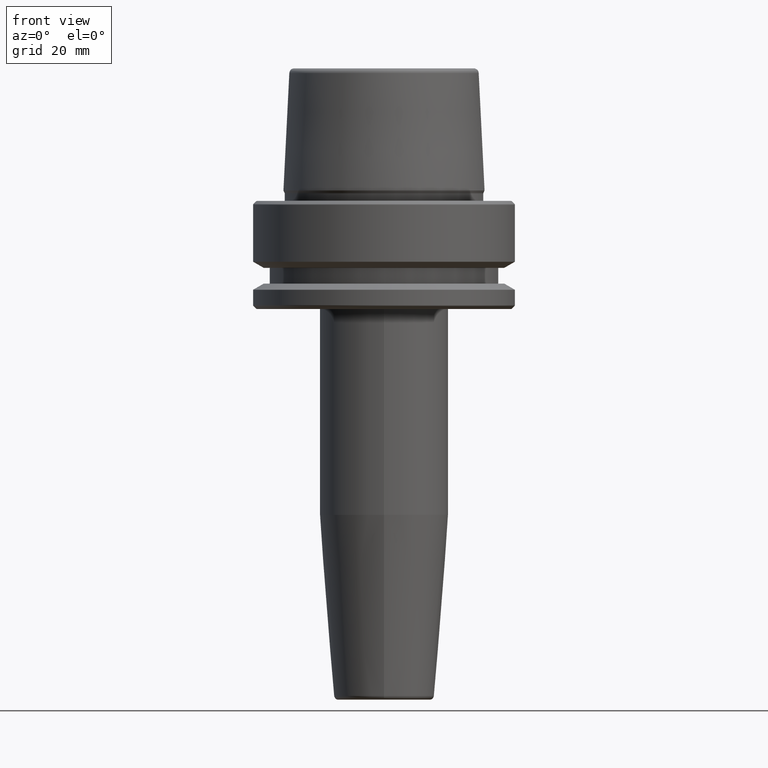
[diagram: clean part render]
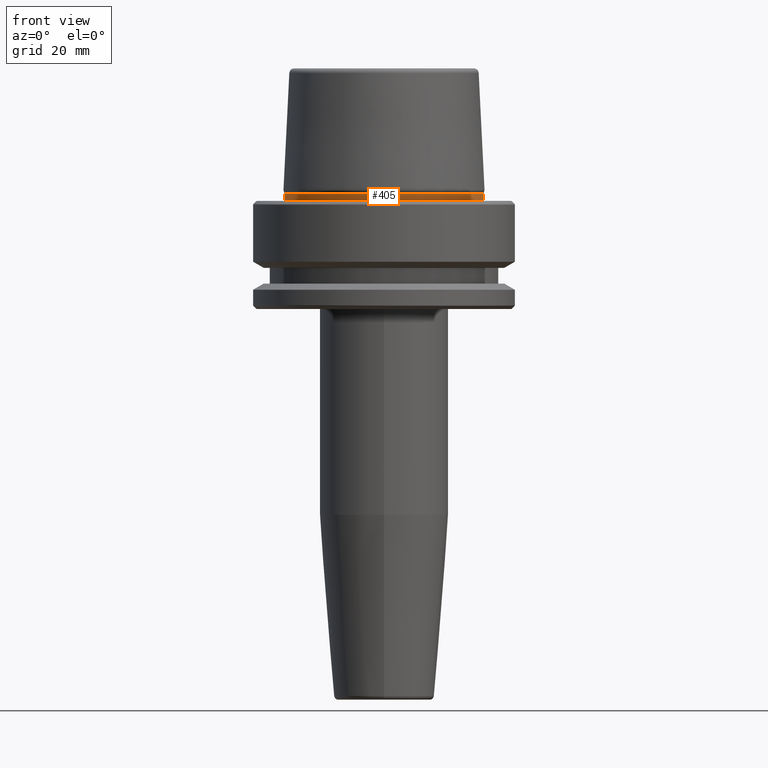
[diagram: same view with one face highlighted and labeled with its STEP entity id]
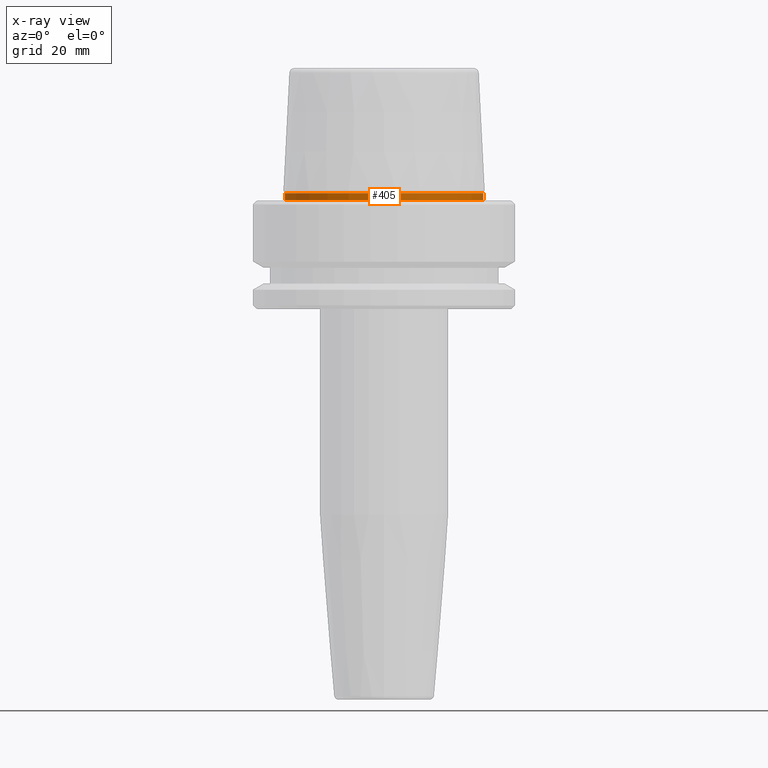
[diagram: x-ray of the same camera — body ghosted, the highlighted face saturated]
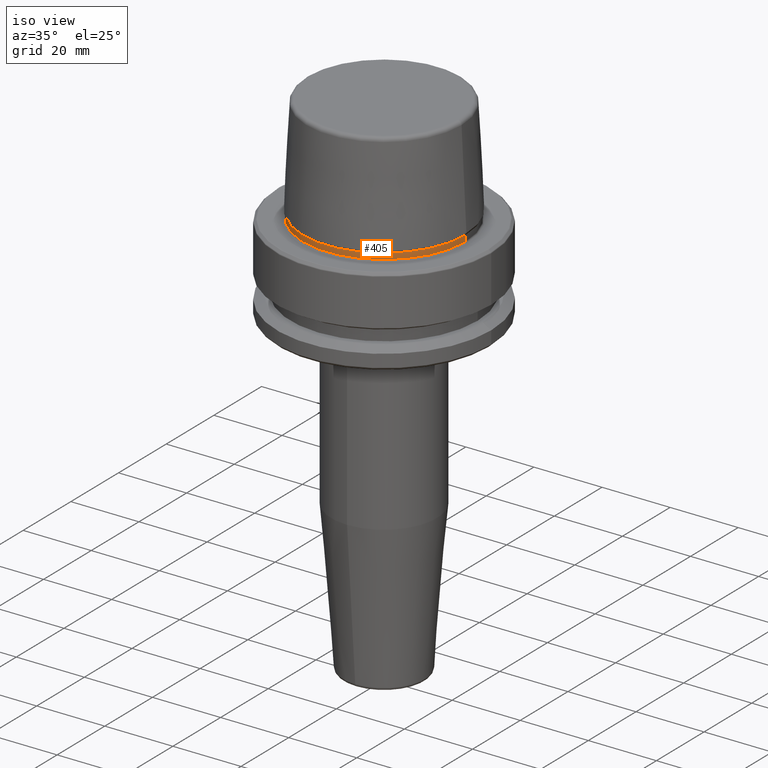
[diagram: same view with one face highlighted and labeled with its STEP entity id]
A machine part, front view. The second image highlights one B-rep face of the part: STEP entity #405.
The next image is the same camera in x-ray: the body ghosted, the highlighted face saturated — about 0% of this face is hidden behind the body in this view.
A second angle (iso view) of the same face is appended — the face is thin or edge-on in the first view.
In plain terms, the highlighted cylindrical surface (partial cylindrical patch) has radius 23.89 mm, axis along (-0, -0, 1).
Its self-contained STEP definition (entity closure, byte-faithful):
#17 = DIRECTION ( 'NONE',  ( -0.0000000000000000000, -0.0000000000000000000, 1.000000000000000000 ) ) ;
#59 = EDGE_CURVE ( 'NONE', #220, #648, #1240, .T. ) ;
#83 = AXIS2_PLACEMENT_3D ( 'NONE', #107, #17, #505 ) ;
#97 = DIRECTION ( 'NONE',  ( 1.000000000000000000, 0.0000000000000000000, 0.0000000000000000000 ) ) ;
#107 = CARTESIAN_POINT ( 'NONE',  ( 0.0000000000000000000, 0.0000000000000000000, 1.845119734979375100 ) ) ;
#142 = CIRCLE ( 'NONE', #164, 23.89000000000000400 ) ;
#147 = ORIENTED_EDGE ( 'NONE', *, *, #835, .T. ) ;
#161 = AXIS2_PLACEMENT_3D ( 'NONE', #697, #878, #407 ) ;
#164 = AXIS2_PLACEMENT_3D ( 'NONE', #202, #802, #97 ) ;
#202 = CARTESIAN_POINT ( 'NONE',  ( 0.0000000000000000000, 0.0000000000000000000, 0.1312552021302954000 ) ) ;
#220 = VERTEX_POINT ( 'NONE', #418 ) ;
#227 = VECTOR ( 'NONE', #1181, 1000.000000000000000 ) ;
#245 = VECTOR ( 'NONE', #264, 1000.000000000000000 ) ;
#264 = DIRECTION ( 'NONE',  ( -0.0000000000000000000, -0.0000000000000000000, 1.000000000000000000 ) ) ;
#285 = CARTESIAN_POINT ( 'NONE',  ( 23.89000000000000100, 0.0000000000000000000, 1.845119734979375100 ) ) ;
#399 = VERTEX_POINT ( 'NONE', #981 ) ;
#405 = ADVANCED_FACE ( 'NONE', ( #963 ), #1185, .T. ) ;
#407 = DIRECTION ( 'NONE',  ( 1.000000000000000000, 0.0000000000000000000, 0.0000000000000000000 ) ) ;
#418 = CARTESIAN_POINT ( 'NONE',  ( -23.89000000000000400, 2.961613815265650600E-015, 0.1312552021302954000 ) ) ;
#424 = ORIENTED_EDGE ( 'NONE', *, *, #59, .F. ) ;
#435 = VERTEX_POINT ( 'NONE', #285 ) ;
#493 = LINE ( 'NONE', #944, #227 ) ;
#505 = DIRECTION ( 'NONE',  ( 1.000000000000000000, 0.0000000000000000000, 0.0000000000000000000 ) ) ;
#562 = CARTESIAN_POINT ( 'NONE',  ( -23.89000000000000100, 2.944380070784114200E-015, 1.845119734979375100 ) ) ;
#605 = CARTESIAN_POINT ( 'NONE',  ( -23.89000000000000100, 2.925681203163027000E-015, 78.96908074195309300 ) ) ;
#648 = VERTEX_POINT ( 'NONE', #562 ) ;
#697 = CARTESIAN_POINT ( 'NONE',  ( 0.0000000000000000000, 0.0000000000000000000, 78.96908074195309300 ) ) ;
#706 = CIRCLE ( 'NONE', #83, 23.89000000000000100 ) ;
#800 = EDGE_CURVE ( 'NONE', #648, #435, #706, .T. ) ;
#802 = DIRECTION ( 'NONE',  ( -0.0000000000000000000, -0.0000000000000000000, 1.000000000000000000 ) ) ;
#835 = EDGE_CURVE ( 'NONE', #399, #435, #493, .T. ) ;
#878 = DIRECTION ( 'NONE',  ( -0.0000000000000000000, -0.0000000000000000000, 1.000000000000000000 ) ) ;
#926 = EDGE_CURVE ( 'NONE', #220, #399, #142, .T. ) ;
#936 = ORIENTED_EDGE ( 'NONE', *, *, #800, .F. ) ;
#941 = ORIENTED_EDGE ( 'NONE', *, *, #926, .T. ) ;
#944 = CARTESIAN_POINT ( 'NONE',  ( 23.89000000000000100, 0.0000000000000000000, 78.96908074195309300 ) ) ;
#963 = FACE_OUTER_BOUND ( 'NONE', #1005, .T. ) ;
#981 = CARTESIAN_POINT ( 'NONE',  ( 23.89000000000000400, 0.0000000000000000000, 0.1312552021302954000 ) ) ;
#1005 = EDGE_LOOP ( 'NONE', ( #424, #941, #147, #936 ) ) ;
#1181 = DIRECTION ( 'NONE',  ( -0.0000000000000000000, -0.0000000000000000000, 1.000000000000000000 ) ) ;
#1185 = CYLINDRICAL_SURFACE ( 'NONE', #161, 23.89000000000000100 ) ;
#1240 = LINE ( 'NONE', #605, #245 ) ;